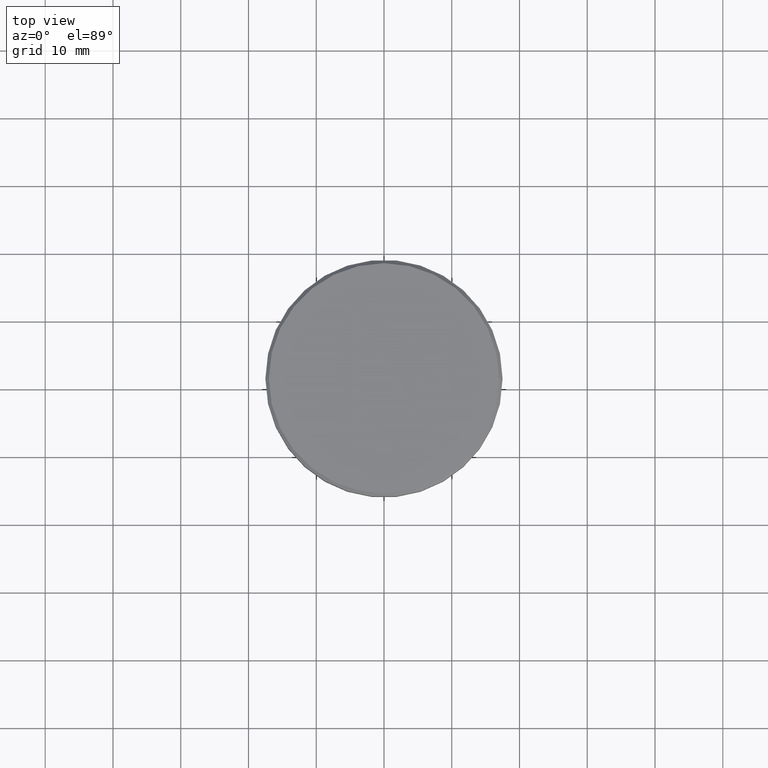
[diagram: clean part render]
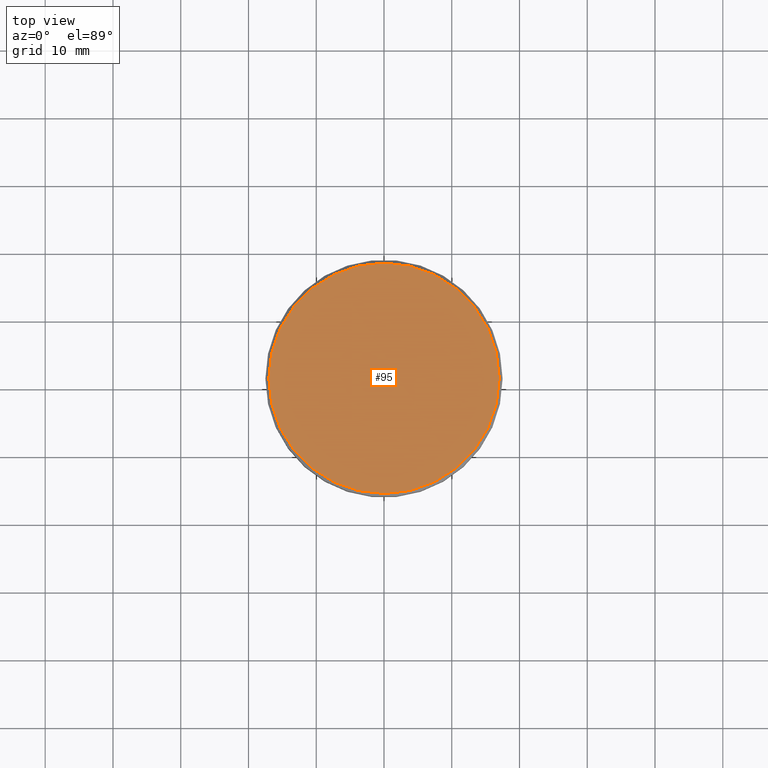
[diagram: same view with one face highlighted and labeled with its STEP entity id]
A machine part, top view. The second image highlights one B-rep face of the part: STEP entity #95.
In plain terms, the highlighted planar face has unit normal (0, -0, 1).
Its self-contained STEP definition (entity closure, byte-faithful):
#24 = EDGE_CURVE ( 'NONE', #1164, #1088, #25, .T. ) ;
#25 = CIRCLE ( 'NONE', #886, 17.00000000000000000 ) ;
#67 = AXIS2_PLACEMENT_3D ( 'NONE', #598, #158, #944 ) ;
#89 = PLANE ( 'NONE',  #679 ) ;
#95 = ADVANCED_FACE ( 'NONE', ( #175 ), #89, .T. ) ;
#103 = CARTESIAN_POINT ( 'NONE',  ( 0.000000000000000000, 0.000000000000000000, 0.000000000000000000 ) ) ;
#158 = DIRECTION ( 'NONE',  ( -0.000000000000000000, -0.000000000000000000, 1.000000000000000000 ) ) ;
#175 = FACE_OUTER_BOUND ( 'NONE', #859, .T. ) ;
#183 = CIRCLE ( 'NONE', #67, 17.00000000000000000 ) ;
#335 = DIRECTION ( 'NONE',  ( 1.000000000000000000, 0.000000000000000000, 0.000000000000000000 ) ) ;
#394 = DIRECTION ( 'NONE',  ( 0.000000000000000000, -0.000000000000000000, 1.000000000000000000 ) ) ;
#487 = CARTESIAN_POINT ( 'NONE',  ( 17.00000000000000000, 2.112515728529184067E-15, 0.000000000000000000 ) ) ;
#502 = CARTESIAN_POINT ( 'NONE',  ( -17.00000000000000000, 0.000000000000000000, 0.000000000000000000 ) ) ;
#598 = CARTESIAN_POINT ( 'NONE',  ( 0.000000000000000000, 0.000000000000000000, 0.000000000000000000 ) ) ;
#679 = AXIS2_PLACEMENT_3D ( 'NONE', #103, #394, #737 ) ;
#692 = ORIENTED_EDGE ( 'NONE', *, *, #703, .T. ) ;
#703 = EDGE_CURVE ( 'NONE', #1088, #1164, #183, .T. ) ;
#706 = CARTESIAN_POINT ( 'NONE',  ( 0.000000000000000000, 0.000000000000000000, 0.000000000000000000 ) ) ;
#737 = DIRECTION ( 'NONE',  ( 1.000000000000000000, 0.000000000000000000, 0.000000000000000000 ) ) ;
#817 = ORIENTED_EDGE ( 'NONE', *, *, #24, .T. ) ;
#859 = EDGE_LOOP ( 'NONE', ( #692, #817 ) ) ;
#886 = AXIS2_PLACEMENT_3D ( 'NONE', #706, #1061, #335 ) ;
#944 = DIRECTION ( 'NONE',  ( 1.000000000000000000, 0.000000000000000000, 0.000000000000000000 ) ) ;
#1061 = DIRECTION ( 'NONE',  ( -0.000000000000000000, -0.000000000000000000, 1.000000000000000000 ) ) ;
#1088 = VERTEX_POINT ( 'NONE', #502 ) ;
#1164 = VERTEX_POINT ( 'NONE', #487 ) ;